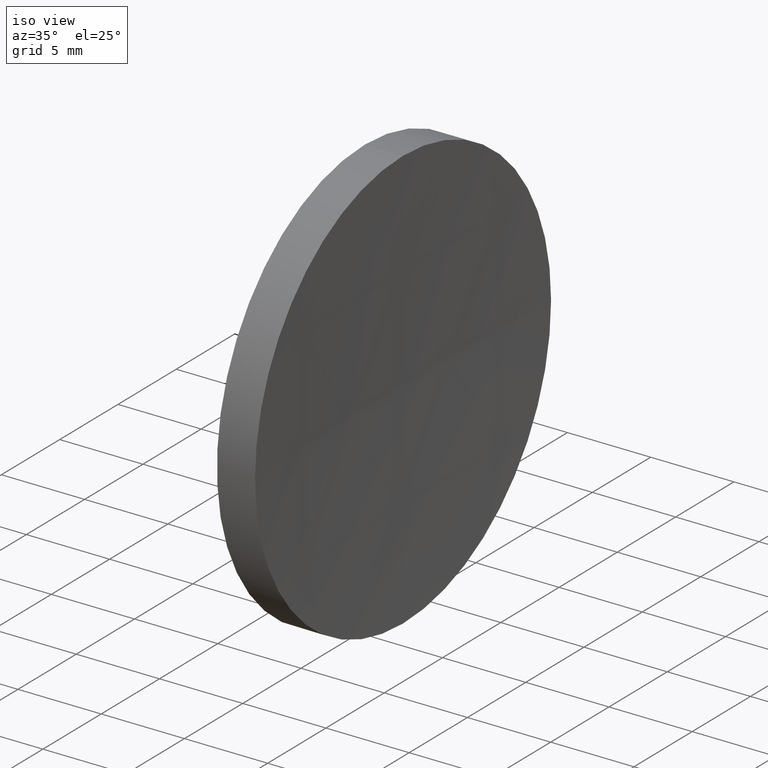
[diagram: clean part render]
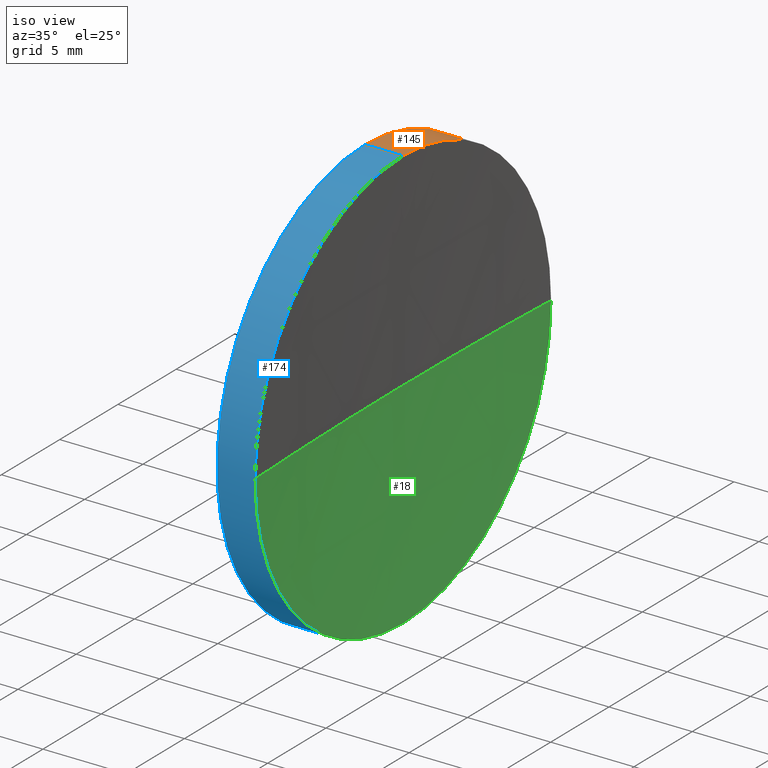
[diagram: same view with three faces highlighted in distinct colors, each labeled with its STEP entity id]
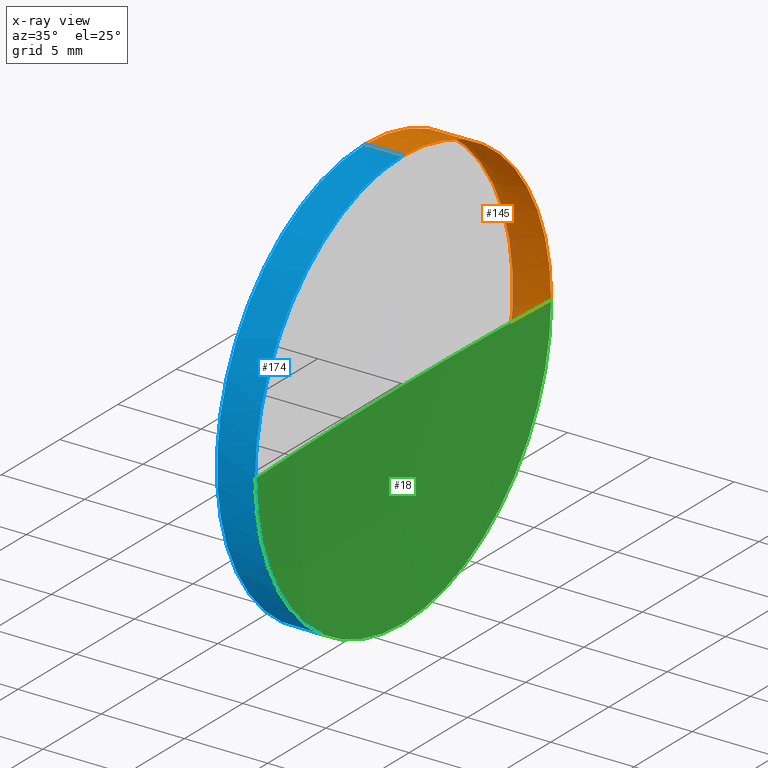
[diagram: x-ray of the same camera — body ghosted, the three highlighted faces saturated]
A machine part, iso view with three faces highlighted in distinct colors.
The next image is the same camera in x-ray (body ghosted, the three faces saturated) — at least one of them is partly hidden behind the body in this view.
Their STEP definitions:

[orange] entity #145 — the highlighted cylindrical surface (partial cylindrical patch) has radius 12.7 mm, axis along (-1, -0, -0).
#1 = DIRECTION ( 'NONE',  ( -1.000000000000000000, -0.0000000000000000000, -0.0000000000000000000 ) ) ;
#2 = ORIENTED_EDGE ( 'NONE', *, *, #46, .T. ) ;
#3 = VECTOR ( 'NONE', #42, 1000.000000000000000 ) ;
#4 = ORIENTED_EDGE ( 'NONE', *, *, #55, .F. ) ;
#9 = VECTOR ( 'NONE', #117, 1000.000000000000000 ) ;
#13 = DIRECTION ( 'NONE',  ( -1.000000000000000000, -0.0000000000000000000, -0.0000000000000000000 ) ) ;
#24 = CARTESIAN_POINT ( 'NONE',  ( 121.7944861280022900, 71.19398908659370300, 0.0000000000000000000 ) ) ;
#29 = ORIENTED_EDGE ( 'NONE', *, *, #62, .T. ) ;
#35 = VERTEX_POINT ( 'NONE', #60 ) ;
#38 = DIRECTION ( 'NONE',  ( 0.0000000000000000000, 0.0000000000000000000, 1.000000000000000000 ) ) ;
#40 = LINE ( 'NONE', #184, #3 ) ;
#42 = DIRECTION ( 'NONE',  ( -1.000000000000000000, -0.0000000000000000000, -0.0000000000000000000 ) ) ;
#45 = CIRCLE ( 'NONE', #79, 12.70000000000000300 ) ;
#46 = EDGE_CURVE ( 'NONE', #115, #161, #164, .T. ) ;
#47 = ORIENTED_EDGE ( 'NONE', *, *, #66, .T. ) ;
#55 = EDGE_CURVE ( 'NONE', #76, #35, #45, .T. ) ;
#58 = DIRECTION ( 'NONE',  ( 0.0000000000000000000, 0.0000000000000000000, 1.000000000000000000 ) ) ;
#60 = CARTESIAN_POINT ( 'NONE',  ( 119.5068341785477100, 71.19398908659370300, -12.70000000000000300 ) ) ;
#62 = EDGE_CURVE ( 'NONE', #136, #35, #128, .T. ) ;
#64 = DIRECTION ( 'NONE',  ( -1.000000000000000000, -0.0000000000000000000, -0.0000000000000000000 ) ) ;
#66 = EDGE_CURVE ( 'NONE', #161, #136, #84, .T. ) ;
#67 = CARTESIAN_POINT ( 'NONE',  ( 111.9552297575605700, 71.19398908659370300, -12.70000000000000300 ) ) ;
#68 = DIRECTION ( 'NONE',  ( -1.000000000000000000, -0.0000000000000000000, -0.0000000000000000000 ) ) ;
#72 = CYLINDRICAL_SURFACE ( 'NONE', #139, 12.70000000000000300 ) ;
#76 = VERTEX_POINT ( 'NONE', #163 ) ;
#79 = AXIS2_PLACEMENT_3D ( 'NONE', #104, #13, #135 ) ;
#84 = CIRCLE ( 'NONE', #132, 12.70000000000000300 ) ;
#92 = AXIS2_PLACEMENT_3D ( 'NONE', #24, #68, #38 ) ;
#93 = EDGE_LOOP ( 'NONE', ( #47, #29, #4, #157, #2 ) ) ;
#102 = CARTESIAN_POINT ( 'NONE',  ( 121.7944861280023000, 83.89398908659332200, 0.0000000000000000000 ) ) ;
#104 = CARTESIAN_POINT ( 'NONE',  ( 119.5068341785477100, 71.19398908659370300, 0.0000000000000000000 ) ) ;
#109 = EDGE_CURVE ( 'NONE', #115, #76, #40, .T. ) ;
#111 = CARTESIAN_POINT ( 'NONE',  ( 121.7944861280022900, 71.19398908659370300, -12.70000000000000300 ) ) ;
#115 = VERTEX_POINT ( 'NONE', #137 ) ;
#117 = DIRECTION ( 'NONE',  ( -1.000000000000000000, -0.0000000000000000000, -0.0000000000000000000 ) ) ;
#121 = CARTESIAN_POINT ( 'NONE',  ( 121.7944861280022900, 71.19398908659370300, 0.0000000000000000000 ) ) ;
#127 = DIRECTION ( 'NONE',  ( 0.0000000000000000000, 0.0000000000000000000, 1.000000000000000000 ) ) ;
#128 = LINE ( 'NONE', #67, #9 ) ;
#132 = AXIS2_PLACEMENT_3D ( 'NONE', #121, #1, #58 ) ;
#135 = DIRECTION ( 'NONE',  ( 0.0000000000000000000, 0.0000000000000000000, 1.000000000000000000 ) ) ;
#136 = VERTEX_POINT ( 'NONE', #111 ) ;
#137 = CARTESIAN_POINT ( 'NONE',  ( 121.7944861280022900, 71.19398908659370300, 12.70000000000000300 ) ) ;
#139 = AXIS2_PLACEMENT_3D ( 'NONE', #176, #64, #127 ) ;
#145 = ADVANCED_FACE ( 'NONE', ( #160 ), #72, .T. ) ;
#157 = ORIENTED_EDGE ( 'NONE', *, *, #109, .F. ) ;
#160 = FACE_OUTER_BOUND ( 'NONE', #93, .T. ) ;
#161 = VERTEX_POINT ( 'NONE', #102 ) ;
#163 = CARTESIAN_POINT ( 'NONE',  ( 119.5068341785477100, 71.19398908659370300, 12.70000000000000300 ) ) ;
#164 = CIRCLE ( 'NONE', #92, 12.70000000000000300 ) ;
#176 = CARTESIAN_POINT ( 'NONE',  ( 111.9552297575605700, 71.19398908659370300, 0.0000000000000000000 ) ) ;
#184 = CARTESIAN_POINT ( 'NONE',  ( 111.9552297575605700, 71.19398908659370300, 12.70000000000000300 ) ) ;

[blue] entity #174 — the highlighted cylindrical surface (partial cylindrical patch) has radius 12.7 mm, axis along (-1, -0, -0).
#3 = VECTOR ( 'NONE', #42, 1000.000000000000000 ) ;
#9 = VECTOR ( 'NONE', #117, 1000.000000000000000 ) ;
#15 = ORIENTED_EDGE ( 'NONE', *, *, #62, .F. ) ;
#17 = DIRECTION ( 'NONE',  ( 0.0000000000000000000, 0.0000000000000000000, 1.000000000000000000 ) ) ;
#19 = CARTESIAN_POINT ( 'NONE',  ( 121.7944861280022900, 71.19398908659370300, 0.0000000000000000000 ) ) ;
#27 = ORIENTED_EDGE ( 'NONE', *, *, #44, .F. ) ;
#28 = DIRECTION ( 'NONE',  ( 0.0000000000000000000, 0.0000000000000000000, 1.000000000000000000 ) ) ;
#35 = VERTEX_POINT ( 'NONE', #60 ) ;
#40 = LINE ( 'NONE', #184, #3 ) ;
#42 = DIRECTION ( 'NONE',  ( -1.000000000000000000, -0.0000000000000000000, -0.0000000000000000000 ) ) ;
#44 = EDGE_CURVE ( 'NONE', #35, #76, #148, .T. ) ;
#53 = ORIENTED_EDGE ( 'NONE', *, *, #89, .T. ) ;
#56 = DIRECTION ( 'NONE',  ( -1.000000000000000000, -0.0000000000000000000, -0.0000000000000000000 ) ) ;
#60 = CARTESIAN_POINT ( 'NONE',  ( 119.5068341785477100, 71.19398908659370300, -12.70000000000000300 ) ) ;
#62 = EDGE_CURVE ( 'NONE', #136, #35, #128, .T. ) ;
#67 = CARTESIAN_POINT ( 'NONE',  ( 111.9552297575605700, 71.19398908659370300, -12.70000000000000300 ) ) ;
#70 = DIRECTION ( 'NONE',  ( -1.000000000000000000, -0.0000000000000000000, -0.0000000000000000000 ) ) ;
#73 = EDGE_LOOP ( 'NONE', ( #15, #95, #53, #125, #27 ) ) ;
#76 = VERTEX_POINT ( 'NONE', #163 ) ;
#89 = EDGE_CURVE ( 'NONE', #172, #115, #155, .T. ) ;
#95 = ORIENTED_EDGE ( 'NONE', *, *, #156, .T. ) ;
#96 = AXIS2_PLACEMENT_3D ( 'NONE', #19, #123, #17 ) ;
#109 = EDGE_CURVE ( 'NONE', #115, #76, #40, .T. ) ;
#110 = FACE_OUTER_BOUND ( 'NONE', #73, .T. ) ;
#111 = CARTESIAN_POINT ( 'NONE',  ( 121.7944861280022900, 71.19398908659370300, -12.70000000000000300 ) ) ;
#114 = CARTESIAN_POINT ( 'NONE',  ( 121.7944861280022900, 71.19398908659370300, 0.0000000000000000000 ) ) ;
#115 = VERTEX_POINT ( 'NONE', #137 ) ;
#117 = DIRECTION ( 'NONE',  ( -1.000000000000000000, -0.0000000000000000000, -0.0000000000000000000 ) ) ;
#123 = DIRECTION ( 'NONE',  ( -1.000000000000000000, -0.0000000000000000000, -0.0000000000000000000 ) ) ;
#124 = AXIS2_PLACEMENT_3D ( 'NONE', #171, #56, #159 ) ;
#125 = ORIENTED_EDGE ( 'NONE', *, *, #109, .T. ) ;
#128 = LINE ( 'NONE', #67, #9 ) ;
#130 = DIRECTION ( 'NONE',  ( -1.000000000000000000, -0.0000000000000000000, -0.0000000000000000000 ) ) ;
#134 = AXIS2_PLACEMENT_3D ( 'NONE', #114, #130, #28 ) ;
#136 = VERTEX_POINT ( 'NONE', #111 ) ;
#137 = CARTESIAN_POINT ( 'NONE',  ( 121.7944861280022900, 71.19398908659370300, 12.70000000000000300 ) ) ;
#141 = CARTESIAN_POINT ( 'NONE',  ( 121.7944861280023000, 58.49398908659407700, -1.555301434917091100E-015 ) ) ;
#143 = CIRCLE ( 'NONE', #134, 12.70000000000000300 ) ;
#148 = CIRCLE ( 'NONE', #124, 12.70000000000000300 ) ;
#150 = DIRECTION ( 'NONE',  ( 0.0000000000000000000, 0.0000000000000000000, 1.000000000000000000 ) ) ;
#155 = CIRCLE ( 'NONE', #96, 12.70000000000000300 ) ;
#156 = EDGE_CURVE ( 'NONE', #136, #172, #143, .T. ) ;
#158 = AXIS2_PLACEMENT_3D ( 'NONE', #179, #70, #150 ) ;
#159 = DIRECTION ( 'NONE',  ( 0.0000000000000000000, 0.0000000000000000000, 1.000000000000000000 ) ) ;
#163 = CARTESIAN_POINT ( 'NONE',  ( 119.5068341785477100, 71.19398908659370300, 12.70000000000000300 ) ) ;
#171 = CARTESIAN_POINT ( 'NONE',  ( 119.5068341785477100, 71.19398908659370300, 0.0000000000000000000 ) ) ;
#172 = VERTEX_POINT ( 'NONE', #141 ) ;
#174 = ADVANCED_FACE ( 'NONE', ( #110 ), #177, .T. ) ;
#177 = CYLINDRICAL_SURFACE ( 'NONE', #158, 12.70000000000000300 ) ;
#179 = CARTESIAN_POINT ( 'NONE',  ( 111.9552297575605700, 71.19398908659370300, 0.0000000000000000000 ) ) ;
#184 = CARTESIAN_POINT ( 'NONE',  ( 111.9552297575605700, 71.19398908659370300, 12.70000000000000300 ) ) ;

[green] entity #18 — the highlighted spherical surface has radius 280.5 mm.
#1 = DIRECTION ( 'NONE',  ( -1.000000000000000000, -0.0000000000000000000, -0.0000000000000000000 ) ) ;
#11 = ORIENTED_EDGE ( 'NONE', *, *, #156, .F. ) ;
#14 = CIRCLE ( 'NONE', #74, 280.4999999999999400 ) ;
#18 = ADVANCED_FACE ( 'NONE', ( #180 ), #49, .F. ) ;
#22 = DIRECTION ( 'NONE',  ( 0.0000000000000000000, 0.0000000000000000000, 1.000000000000000000 ) ) ;
#23 = CARTESIAN_POINT ( 'NONE',  ( 121.5068341785477300, 71.19398908659370300, 0.0000000000000000000 ) ) ;
#28 = DIRECTION ( 'NONE',  ( 0.0000000000000000000, 0.0000000000000000000, 1.000000000000000000 ) ) ;
#32 = EDGE_CURVE ( 'NONE', #161, #144, #14, .T. ) ;
#34 = DIRECTION ( 'NONE',  ( 1.000000000000000000, 0.0000000000000000000, 0.0000000000000000000 ) ) ;
#41 = ORIENTED_EDGE ( 'NONE', *, *, #66, .F. ) ;
#49 = SPHERICAL_SURFACE ( 'NONE', #119, 280.5000000000000000 ) ;
#58 = DIRECTION ( 'NONE',  ( 0.0000000000000000000, 0.0000000000000000000, 1.000000000000000000 ) ) ;
#66 = EDGE_CURVE ( 'NONE', #161, #136, #84, .T. ) ;
#69 = EDGE_LOOP ( 'NONE', ( #154, #11, #41, #186 ) ) ;
#74 = AXIS2_PLACEMENT_3D ( 'NONE', #113, #22, #34 ) ;
#78 = CARTESIAN_POINT ( 'NONE',  ( 402.0068341785477100, 71.19398908659368900, 0.0000000000000000000 ) ) ;
#84 = CIRCLE ( 'NONE', #132, 12.70000000000000300 ) ;
#90 = CIRCLE ( 'NONE', #166, 280.5000000000000000 ) ;
#98 = DIRECTION ( 'NONE',  ( 0.0000000000000000000, 1.000000000000000000, 0.0000000000000000000 ) ) ;
#102 = CARTESIAN_POINT ( 'NONE',  ( 121.7944861280023000, 83.89398908659332200, 0.0000000000000000000 ) ) ;
#106 = DIRECTION ( 'NONE',  ( 0.0000000000000000000, 1.000000000000000000, 1.224646799147353000E-016 ) ) ;
#107 = EDGE_CURVE ( 'NONE', #172, #144, #90, .T. ) ;
#111 = CARTESIAN_POINT ( 'NONE',  ( 121.7944861280022900, 71.19398908659370300, -12.70000000000000300 ) ) ;
#113 = CARTESIAN_POINT ( 'NONE',  ( 402.0068341785477100, 71.19398908659368900, 0.0000000000000000000 ) ) ;
#114 = CARTESIAN_POINT ( 'NONE',  ( 121.7944861280022900, 71.19398908659370300, 0.0000000000000000000 ) ) ;
#119 = AXIS2_PLACEMENT_3D ( 'NONE', #78, #175, #98 ) ;
#121 = CARTESIAN_POINT ( 'NONE',  ( 121.7944861280022900, 71.19398908659370300, 0.0000000000000000000 ) ) ;
#130 = DIRECTION ( 'NONE',  ( -1.000000000000000000, -0.0000000000000000000, -0.0000000000000000000 ) ) ;
#132 = AXIS2_PLACEMENT_3D ( 'NONE', #121, #1, #58 ) ;
#134 = AXIS2_PLACEMENT_3D ( 'NONE', #114, #130, #28 ) ;
#136 = VERTEX_POINT ( 'NONE', #111 ) ;
#141 = CARTESIAN_POINT ( 'NONE',  ( 121.7944861280023000, 58.49398908659407700, -1.555301434917091100E-015 ) ) ;
#143 = CIRCLE ( 'NONE', #134, 12.70000000000000300 ) ;
#144 = VERTEX_POINT ( 'NONE', #23 ) ;
#146 = CARTESIAN_POINT ( 'NONE',  ( 402.0068341785477100, 71.19398908659368900, 0.0000000000000000000 ) ) ;
#154 = ORIENTED_EDGE ( 'NONE', *, *, #107, .F. ) ;
#156 = EDGE_CURVE ( 'NONE', #136, #172, #143, .T. ) ;
#161 = VERTEX_POINT ( 'NONE', #102 ) ;
#166 = AXIS2_PLACEMENT_3D ( 'NONE', #146, #173, #106 ) ;
#172 = VERTEX_POINT ( 'NONE', #141 ) ;
#173 = DIRECTION ( 'NONE',  ( 0.0000000000000000000, 1.224646799147353200E-016, -1.000000000000000000 ) ) ;
#175 = DIRECTION ( 'NONE',  ( 0.0000000000000000000, 0.0000000000000000000, -1.000000000000000000 ) ) ;
#180 = FACE_OUTER_BOUND ( 'NONE', #69, .T. ) ;
#186 = ORIENTED_EDGE ( 'NONE', *, *, #32, .T. ) ;